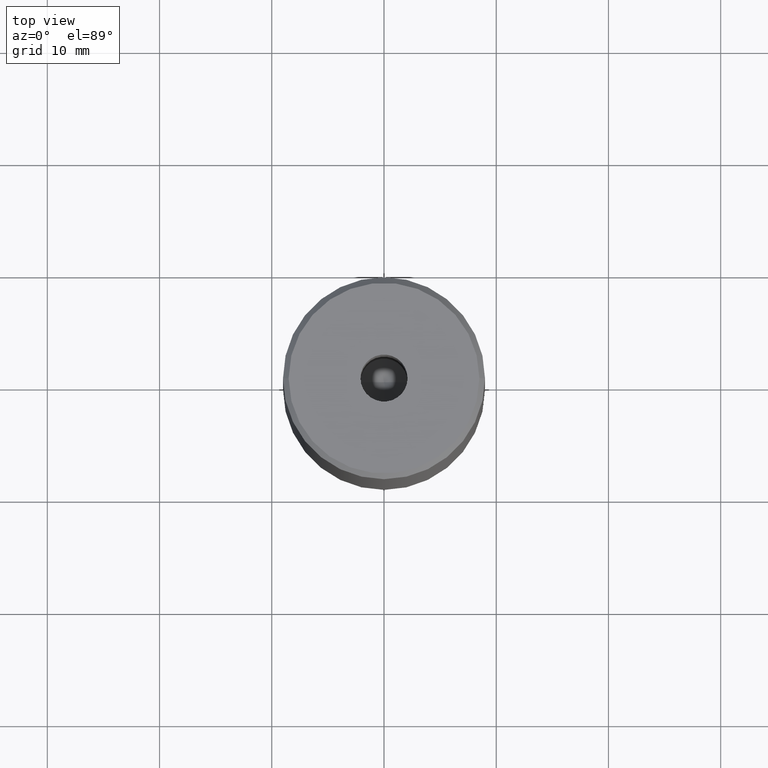
[diagram: clean part render]
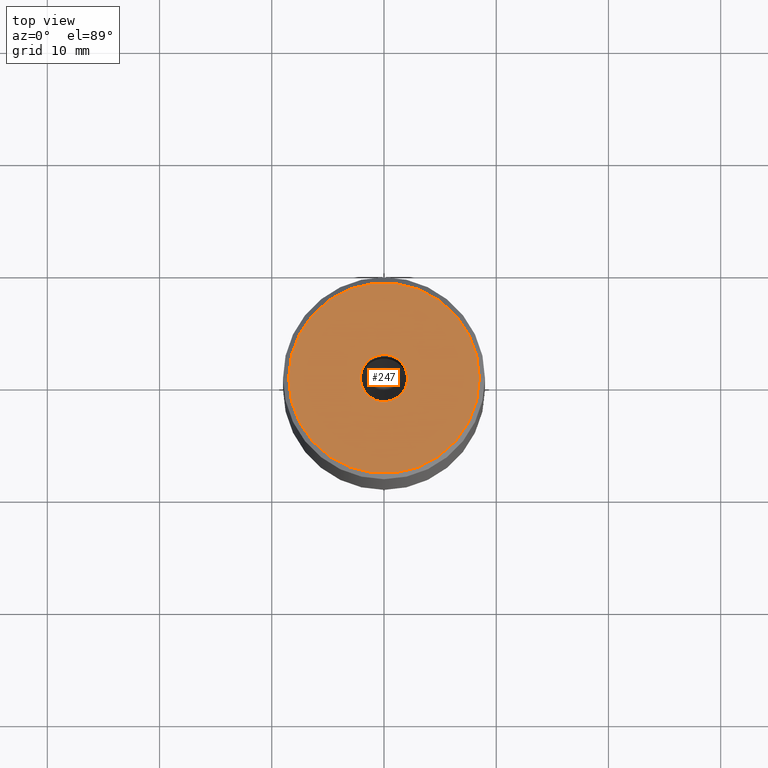
[diagram: same view with one face highlighted and labeled with its STEP entity id]
A machine part, top view. The second image highlights one B-rep face of the part: STEP entity #247.
In plain terms, the highlighted planar face has unit normal (0, -0, 1).
Its self-contained STEP definition (entity closure, byte-faithful):
#10 = CIRCLE ( 'NONE', #328, 2.099999999999998757 ) ;
#17 = DIRECTION ( 'NONE',  ( 1.000000000000000000, 0.000000000000000000, 0.000000000000000000 ) ) ;
#27 = CARTESIAN_POINT ( 'NONE',  ( -2.099999999999998757, 2.571758278209440478E-16, -1.990051048614449116E-16 ) ) ;
#38 = EDGE_CURVE ( 'NONE', #332, #73, #10, .T. ) ;
#45 = ORIENTED_EDGE ( 'NONE', *, *, #242, .F. ) ;
#47 = AXIS2_PLACEMENT_3D ( 'NONE', #309, #214, #543 ) ;
#50 = PLANE ( 'NONE',  #239 ) ;
#67 = VERTEX_POINT ( 'NONE', #585 ) ;
#73 = VERTEX_POINT ( 'NONE', #224 ) ;
#85 = EDGE_CURVE ( 'NONE', #67, #234, #301, .T. ) ;
#89 = CARTESIAN_POINT ( 'NONE',  ( 0.000000000000000000, 0.000000000000000000, 0.000000000000000000 ) ) ;
#94 = AXIS2_PLACEMENT_3D ( 'NONE', #535, #98, #463 ) ;
#98 = DIRECTION ( 'NONE',  ( -0.000000000000000000, -0.000000000000000000, 1.000000000000000000 ) ) ;
#199 = ORIENTED_EDGE ( 'NONE', *, *, #38, .F. ) ;
#201 = CIRCLE ( 'NONE', #47, 2.099999999999998757 ) ;
#210 = CARTESIAN_POINT ( 'NONE',  ( 0.000000000000000000, 0.000000000000000000, -1.990051048614449116E-16 ) ) ;
#214 = DIRECTION ( 'NONE',  ( -0.000000000000000000, -0.000000000000000000, 1.000000000000000000 ) ) ;
#224 = CARTESIAN_POINT ( 'NONE',  ( 2.099999999999998757, 0.000000000000000000, -1.990051048614449116E-16 ) ) ;
#234 = VERTEX_POINT ( 'NONE', #537 ) ;
#239 = AXIS2_PLACEMENT_3D ( 'NONE', #89, #318, #501 ) ;
#242 = EDGE_CURVE ( 'NONE', #73, #332, #201, .T. ) ;
#247 = ADVANCED_FACE ( 'NONE', ( #402, #581 ), #50, .T. ) ;
#296 = CARTESIAN_POINT ( 'NONE',  ( 0.000000000000000000, 0.000000000000000000, 0.000000000000000000 ) ) ;
#301 = CIRCLE ( 'NONE', #94, 8.500000000000021316 ) ;
#309 = CARTESIAN_POINT ( 'NONE',  ( 0.000000000000000000, 0.000000000000000000, -1.990051048614449116E-16 ) ) ;
#318 = DIRECTION ( 'NONE',  ( 0.000000000000000000, -0.000000000000000000, 1.000000000000000000 ) ) ;
#328 = AXIS2_PLACEMENT_3D ( 'NONE', #210, #341, #443 ) ;
#332 = VERTEX_POINT ( 'NONE', #27 ) ;
#336 = AXIS2_PLACEMENT_3D ( 'NONE', #296, #567, #17 ) ;
#341 = DIRECTION ( 'NONE',  ( -0.000000000000000000, -0.000000000000000000, 1.000000000000000000 ) ) ;
#402 = FACE_BOUND ( 'NONE', #455, .T. ) ;
#443 = DIRECTION ( 'NONE',  ( 1.000000000000000000, 0.000000000000000000, 0.000000000000000000 ) ) ;
#455 = EDGE_LOOP ( 'NONE', ( #45, #199 ) ) ;
#461 = ORIENTED_EDGE ( 'NONE', *, *, #85, .T. ) ;
#463 = DIRECTION ( 'NONE',  ( 1.000000000000000000, 0.000000000000000000, 0.000000000000000000 ) ) ;
#488 = ORIENTED_EDGE ( 'NONE', *, *, #528, .T. ) ;
#501 = DIRECTION ( 'NONE',  ( 1.000000000000000000, 0.000000000000000000, 0.000000000000000000 ) ) ;
#528 = EDGE_CURVE ( 'NONE', #234, #67, #555, .T. ) ;
#535 = CARTESIAN_POINT ( 'NONE',  ( 0.000000000000000000, 0.000000000000000000, 0.000000000000000000 ) ) ;
#537 = CARTESIAN_POINT ( 'NONE',  ( 8.500000000000021316, 1.071565949253935307E-15, 0.000000000000000000 ) ) ;
#543 = DIRECTION ( 'NONE',  ( 1.000000000000000000, 0.000000000000000000, 0.000000000000000000 ) ) ;
#555 = CIRCLE ( 'NONE', #336, 8.500000000000021316 ) ;
#562 = EDGE_LOOP ( 'NONE', ( #461, #488 ) ) ;
#567 = DIRECTION ( 'NONE',  ( -0.000000000000000000, -0.000000000000000000, 1.000000000000000000 ) ) ;
#581 = FACE_OUTER_BOUND ( 'NONE', #562, .T. ) ;
#585 = CARTESIAN_POINT ( 'NONE',  ( -8.500000000000021316, 0.000000000000000000, 0.000000000000000000 ) ) ;